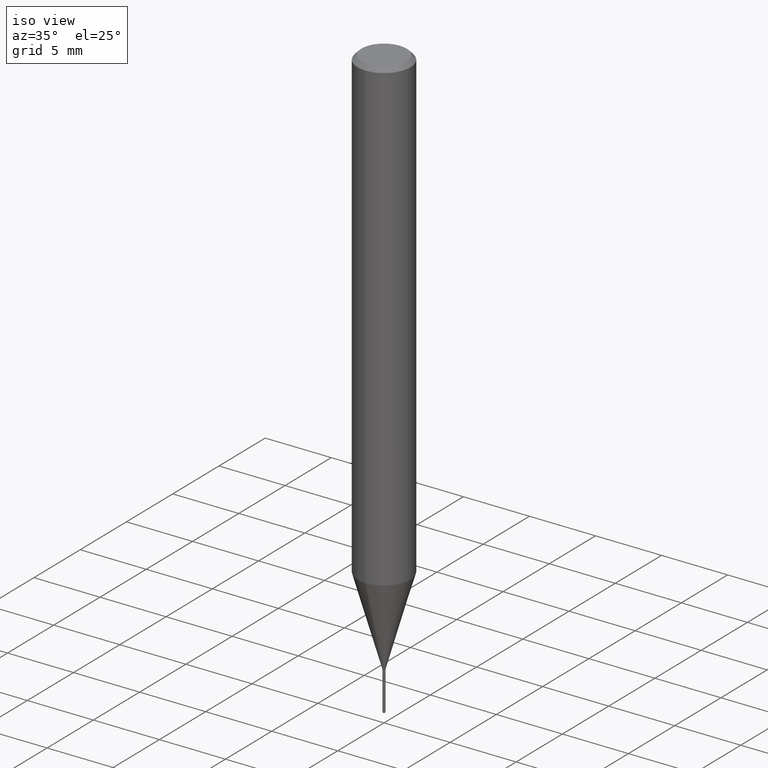
[diagram: clean part render]
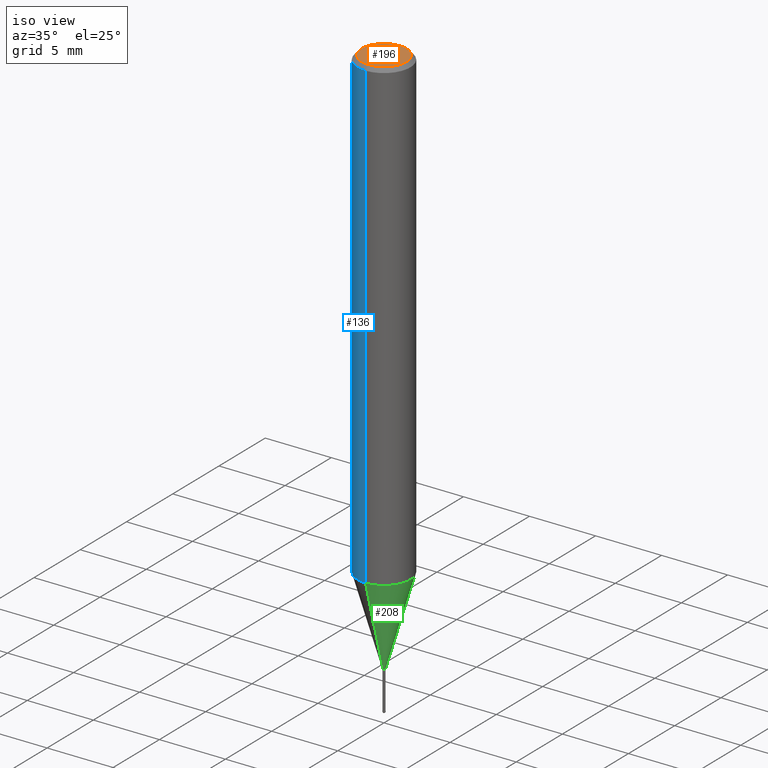
[diagram: same view with three faces highlighted in distinct colors, each labeled with its STEP entity id]
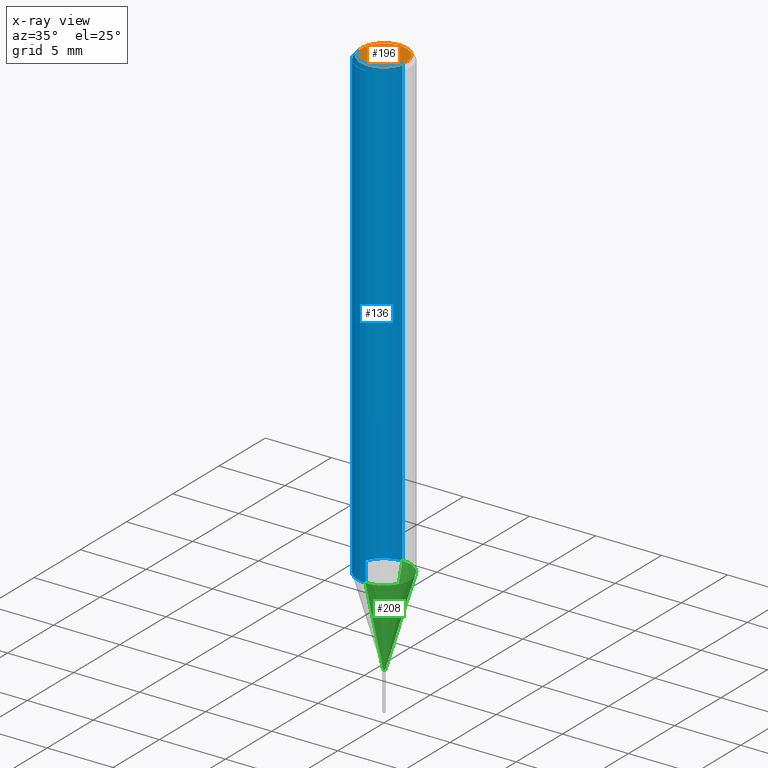
[diagram: x-ray of the same camera — body ghosted, the three highlighted faces saturated]
A machine part, iso view with three faces highlighted in distinct colors.
The next image is the same camera in x-ray (body ghosted, the three faces saturated) — at least one of them is partly hidden behind the body in this view.
Their STEP definitions:

[orange] entity #196 — the highlighted planar face has unit normal (-0, 0, 1).
#106=VERTEX_POINT('',#249);
#108=EDGE_CURVE('',#106,#188,#251,.T.);
#116=EDGE_CURVE('',#188,#106,#262,.T.);
#188=VERTEX_POINT('',#343);
#196=ADVANCED_FACE('',(#351),#352,.T.);
#249=CARTESIAN_POINT('',(0.0,1.7,0.0));
#251=CIRCLE('',#407,1.7);
#262=CIRCLE('',#421,1.7);
#343=CARTESIAN_POINT('',(2.08183080149804E-016,-1.7,0.0));
#351=FACE_OUTER_BOUND('',#529,.T.);
#352=PLANE('',#530);
#407=AXIS2_PLACEMENT_3D('',#580,#581,#582);
#421=AXIS2_PLACEMENT_3D('',#600,#601,#602);
#529=EDGE_LOOP('',(#705,#706));
#530=AXIS2_PLACEMENT_3D('',#707,#708,#709);
#580=CARTESIAN_POINT('',(0.0,0.0,0.0));
#581=DIRECTION('',(0.0,0.0,-1.0));
#582=DIRECTION('',(0.0,1.0,0.0));
#600=CARTESIAN_POINT('',(0.0,0.0,0.0));
#601=DIRECTION('',(0.0,0.0,-1.0));
#602=DIRECTION('',(0.0,1.0,0.0));
#705=ORIENTED_EDGE('',*,*,#108,.F.);
#706=ORIENTED_EDGE('',*,*,#116,.F.);
#707=CARTESIAN_POINT('',(0.0,0.85,0.0));
#708=DIRECTION('',(-0.0,0.0,1.0));
#709=DIRECTION('',(0.0,-1.0,0.0));

[blue] entity #136 — the highlighted cylindrical surface (edge-blend (fillet) strip) has radius 2 mm, axis along (-0, -0, 1).
#114=EDGE_CURVE('',#190,#138,#260,.T.);
#118=EDGE_CURVE('',#170,#190,#264,.T.);
#136=ADVANCED_FACE('',(#284),#285,.T.);
#138=VERTEX_POINT('',#287);
#162=EDGE_CURVE('',#166,#170,#315,.T.);
#166=VERTEX_POINT('',#320);
#170=VERTEX_POINT('',#324);
#190=VERTEX_POINT('',#345);
#194=EDGE_CURVE('',#166,#138,#349,.T.);
#260=LINE('',#417,#418);
#264=CIRCLE('',#424,2.0);
#284=FACE_OUTER_BOUND('',#448,.T.);
#285=CYLINDRICAL_SURFACE('',#449,2.0);
#287=CARTESIAN_POINT('',(0.0,2.0,-35.356));
#315=LINE('',#486,#487);
#320=CARTESIAN_POINT('',(2.44921270764475E-016,-2.0,-35.356));
#324=CARTESIAN_POINT('',(2.44921270764475E-016,-2.0,-0.299999999999997));
#345=CARTESIAN_POINT('',(0.0,2.0,-0.299999999999997));
#349=CIRCLE('',#527,2.0);
#417=CARTESIAN_POINT('',(-2.44921270764475E-016,2.0,-17.828));
#418=VECTOR('',#599,1.0);
#424=AXIS2_PLACEMENT_3D('',#603,#604,#605);
#448=EDGE_LOOP('',(#625,#626,#627,#628));
#449=AXIS2_PLACEMENT_3D('',#629,#630,#631);
#486=CARTESIAN_POINT('',(2.44921270764475E-016,-2.0,-17.828));
#487=VECTOR('',#673,1.0);
#527=AXIS2_PLACEMENT_3D('',#701,#702,#703);
#599=DIRECTION('',(0.0,0.0,-1.0));
#603=CARTESIAN_POINT('',(0.0,0.0,-0.299999999999997));
#604=DIRECTION('',(0.0,0.0,-1.0));
#605=DIRECTION('',(0.0,1.0,0.0));
#625=ORIENTED_EDGE('',*,*,#114,.T.);
#626=ORIENTED_EDGE('',*,*,#194,.F.);
#627=ORIENTED_EDGE('',*,*,#162,.T.);
#628=ORIENTED_EDGE('',*,*,#118,.T.);
#629=CARTESIAN_POINT('',(0.0,0.0,-17.828));
#630=DIRECTION('',(-0.0,-0.0,1.0));
#631=DIRECTION('',(0.0,1.0,0.0));
#673=DIRECTION('',(-0.0,-0.0,1.0));
#701=CARTESIAN_POINT('',(0.0,0.0,-35.356));
#702=DIRECTION('',(0.0,0.0,-1.0));
#703=DIRECTION('',(0.0,1.0,0.0));

[green] entity #208 — the highlighted conical surface has half-angle 15.999 deg.
#120=VERTEX_POINT('',#266);
#122=VERTEX_POINT('',#268);
#124=VERTEX_POINT('',#270);
#142=EDGE_CURVE('',#120,#212,#291,.T.);
#180=EDGE_CURVE('',#124,#212,#335,.T.);
#204=EDGE_CURVE('',#122,#120,#360,.T.);
#208=ADVANCED_FACE('',(#365),#366,.T.);
#212=VERTEX_POINT('',#370);
#214=EDGE_CURVE('',#124,#122,#372,.T.);
#266=CARTESIAN_POINT('',(1.16276373295435E-017,-0.09495,-42.0));
#268=CARTESIAN_POINT('',(0.0,0.09495,-42.0));
#270=CARTESIAN_POINT('',(0.0,1.99995,-35.356));
#291=LINE('',#457,#458);
#335=CIRCLE('',#510,1.99995);
#360=CIRCLE('',#542,0.09495);
#365=FACE_OUTER_BOUND('',#547,.T.);
#366=CONICAL_SURFACE('',#548,1.04745,0.279233718115795);
#370=CARTESIAN_POINT('',(2.44915147732706E-016,-1.99995,-35.356));
#372=LINE('',#556,#557);
#457=CARTESIAN_POINT('',(1.28271392531125E-016,-1.04745,-38.678));
#458=VECTOR('',#635,1.0);
#510=AXIS2_PLACEMENT_3D('',#693,#694,#695);
#542=AXIS2_PLACEMENT_3D('',#719,#720,#721);
#547=EDGE_LOOP('',(#729,#730,#731,#732));
#548=AXIS2_PLACEMENT_3D('',#733,#734,#735);
#556=CARTESIAN_POINT('',(-1.28271392531125E-016,1.04745,-38.678));
#557=VECTOR('',#739,1.0);
#635=DIRECTION('',(3.37524935540219E-017,-0.275619128127744,0.961266922457078));
#693=CARTESIAN_POINT('',(0.0,0.0,-35.356));
#694=DIRECTION('',(0.0,0.0,-1.0));
#695=DIRECTION('',(0.0,1.0,0.0));
#719=CARTESIAN_POINT('',(0.0,0.0,-42.0));
#720=DIRECTION('',(0.0,0.0,-1.0));
#721=DIRECTION('',(0.0,1.0,0.0));
#729=ORIENTED_EDGE('',*,*,#214,.F.);
#730=ORIENTED_EDGE('',*,*,#180,.T.);
#731=ORIENTED_EDGE('',*,*,#142,.F.);
#732=ORIENTED_EDGE('',*,*,#204,.F.);
#733=CARTESIAN_POINT('',(0.0,0.0,-38.678));
#734=DIRECTION('',(-0.0,-0.0,1.0));
#735=DIRECTION('',(0.0,1.0,0.0));
#739=DIRECTION('',(3.37524935540219E-017,-0.275619128127744,-0.961266922457078));